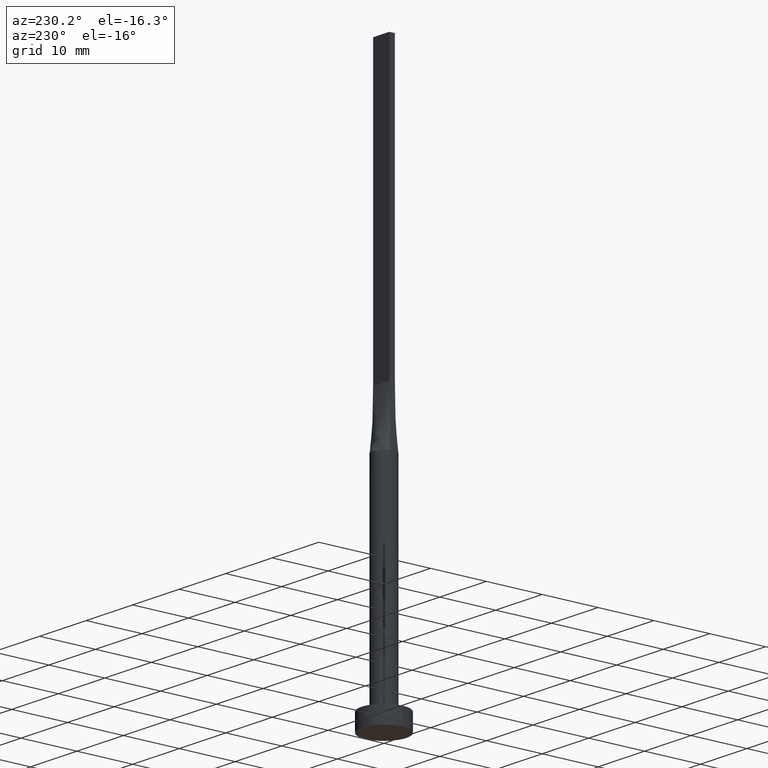
[diagram: clean part render]
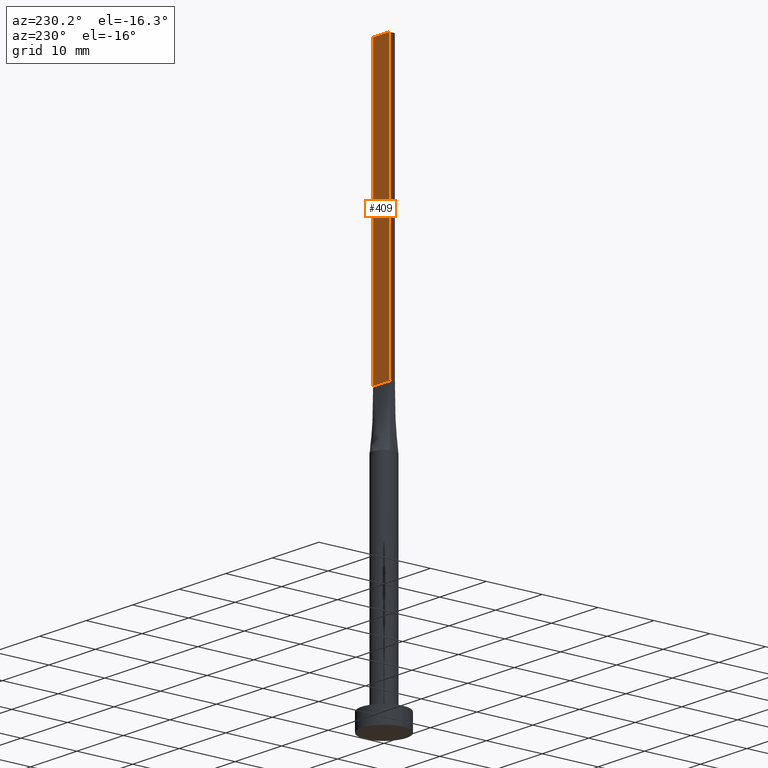
[diagram: same view with one face highlighted and labeled with its STEP entity id]
A machine part, auxiliary view. The second image highlights one B-rep face of the part: STEP entity #409.
In plain terms, the highlighted planar face has unit normal (0, -1, 0).
Its self-contained STEP definition (entity closure, byte-faithful):
#5 = CARTESIAN_POINT ( 'NONE',  ( 1.749999999999999778, 0.5000000000000002220, 100.0000000000000000 ) ) ;
#20 = EDGE_CURVE ( 'NONE', #469, #278, #352, .T. ) ;
#35 = DIRECTION ( 'NONE',  ( -0.000000000000000000, -0.000000000000000000, -1.000000000000000000 ) ) ;
#51 = EDGE_CURVE ( 'NONE', #410, #278, #219, .T. ) ;
#54 = VERTEX_POINT ( 'NONE', #569 ) ;
#67 = ORIENTED_EDGE ( 'NONE', *, *, #155, .T. ) ;
#103 = CARTESIAN_POINT ( 'NONE',  ( 1.749999999999999778, 0.5000000000000002220, 50.00000000000000000 ) ) ;
#128 = CARTESIAN_POINT ( 'NONE',  ( -1.749999999999999778, 0.5000000000000002220, 100.0000000000000000 ) ) ;
#155 = EDGE_CURVE ( 'NONE', #54, #469, #355, .T. ) ;
#164 = EDGE_CURVE ( 'NONE', #54, #410, #358, .T. ) ;
#166 = VECTOR ( 'NONE', #35, 1000.000000000000000 ) ;
#179 = CARTESIAN_POINT ( 'NONE',  ( -1.749999999999999778, 0.5000000000000002220, 100.0000000000000000 ) ) ;
#182 = DIRECTION ( 'NONE',  ( 0.000000000000000000, -0.000000000000000000, -1.000000000000000000 ) ) ;
#184 = DIRECTION ( 'NONE',  ( -0.000000000000000000, -0.000000000000000000, -1.000000000000000000 ) ) ;
#198 = ORIENTED_EDGE ( 'NONE', *, *, #20, .T. ) ;
#206 = EDGE_LOOP ( 'NONE', ( #198, #416, #378, #67 ) ) ;
#219 = LINE ( 'NONE', #128, #166 ) ;
#269 = CARTESIAN_POINT ( 'NONE',  ( 1.749999999999999778, 0.5000000000000002220, 100.0000000000000000 ) ) ;
#278 = VERTEX_POINT ( 'NONE', #393 ) ;
#308 = FACE_OUTER_BOUND ( 'NONE', #206, .T. ) ;
#352 = LINE ( 'NONE', #439, #496 ) ;
#355 = LINE ( 'NONE', #5, #550 ) ;
#358 = LINE ( 'NONE', #543, #401 ) ;
#378 = ORIENTED_EDGE ( 'NONE', *, *, #164, .F. ) ;
#393 = CARTESIAN_POINT ( 'NONE',  ( -1.749999999999999778, 0.5000000000000002220, 50.00000000000000000 ) ) ;
#401 = VECTOR ( 'NONE', #504, 1000.000000000000000 ) ;
#409 = ADVANCED_FACE ( 'NONE', ( #308 ), #490, .F. ) ;
#410 = VERTEX_POINT ( 'NONE', #179 ) ;
#416 = ORIENTED_EDGE ( 'NONE', *, *, #51, .F. ) ;
#439 = CARTESIAN_POINT ( 'NONE',  ( -1.749999999999999778, 0.5000000000000002220, 50.00000000000000000 ) ) ;
#444 = DIRECTION ( 'NONE',  ( -1.000000000000000000, -0.000000000000000000, -0.000000000000000000 ) ) ;
#458 = DIRECTION ( 'NONE',  ( 0.000000000000000000, -1.000000000000000000, 0.000000000000000000 ) ) ;
#469 = VERTEX_POINT ( 'NONE', #103 ) ;
#490 = PLANE ( 'NONE',  #503 ) ;
#496 = VECTOR ( 'NONE', #444, 1000.000000000000000 ) ;
#503 = AXIS2_PLACEMENT_3D ( 'NONE', #269, #458, #182 ) ;
#504 = DIRECTION ( 'NONE',  ( -1.000000000000000000, 0.000000000000000000, 0.000000000000000000 ) ) ;
#543 = CARTESIAN_POINT ( 'NONE',  ( 1.749999999999999778, 0.5000000000000002220, 100.0000000000000000 ) ) ;
#550 = VECTOR ( 'NONE', #184, 1000.000000000000000 ) ;
#569 = CARTESIAN_POINT ( 'NONE',  ( 1.749999999999999778, 0.5000000000000002220, 100.0000000000000000 ) ) ;